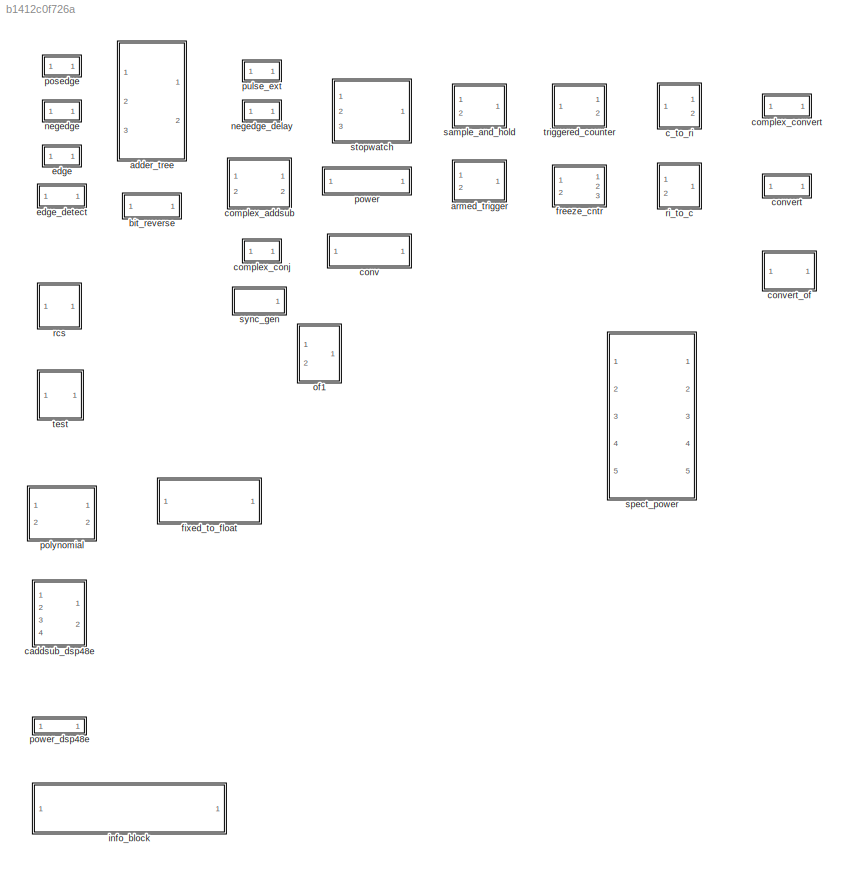
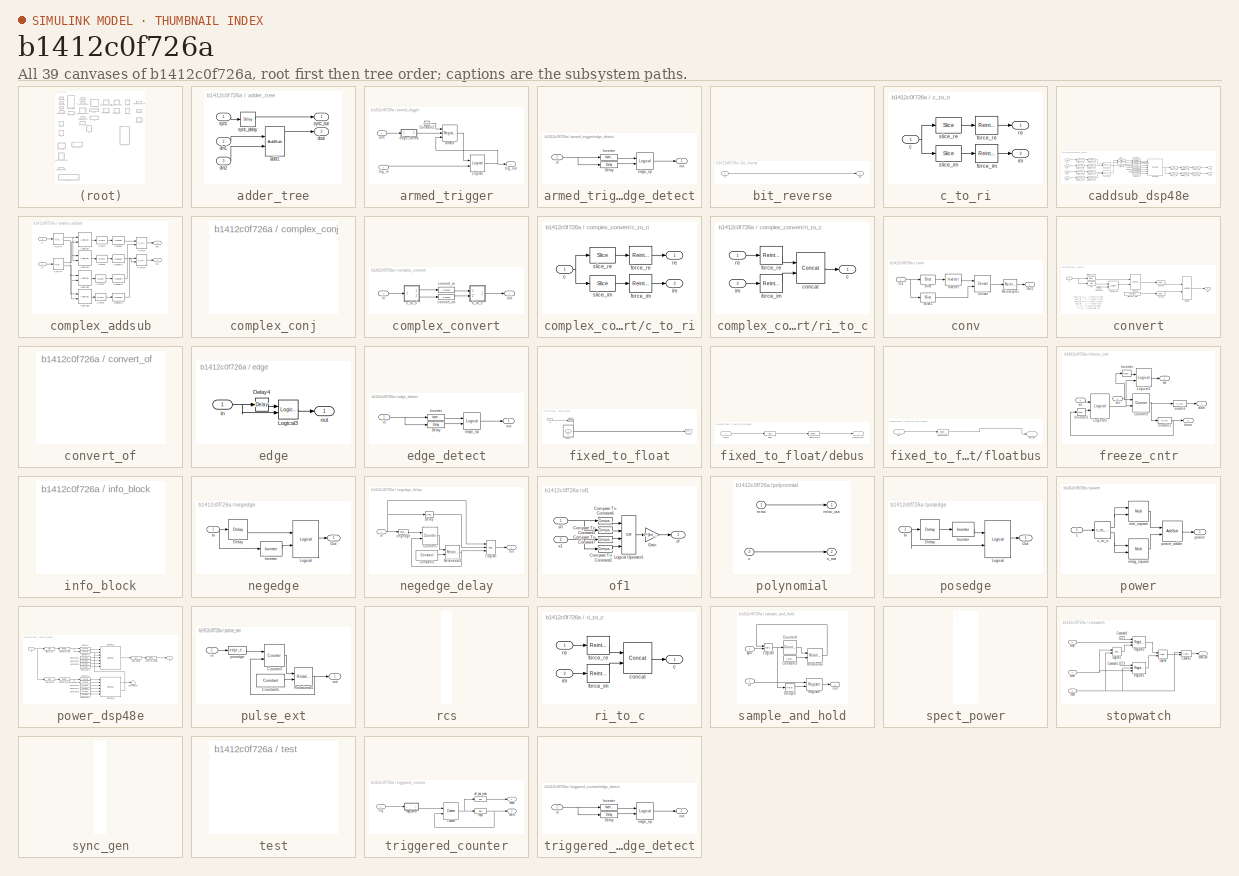
[diagram: thumbnail index - all 39 canvases of the model, root first then tree order]
MODEL slx_b1412c0f726a
KIND library
CONFIG AbsTol = auto
CONFIG EnableMultiTasking = off
CONFIG FixedStep = auto
CONFIG MaxStep = auto
CONFIG MinStep = auto
CONFIG RelTol = 1e-3
CONFIG SampleTimeConstraint = Unconstrained
CONFIG Solver = ode45
CONFIG SolverName = ode45
CONFIG StartTime = 0.0
CONFIG StopTime = 10.0
BLOCK [SubSystem] adder_tree
  AttributesFormatString = latency 1
  Ports = [3, 2]
  RequestExecContextInheritance = off
  UserDataPersistent = on
BLOCK [Reference] adder_tree/addr1  REF=xbsIndex_r4/AddSub
  Ports = [2, 1]
  SourceBlock = xbsIndex_r4/AddSub
  SourceType = Xilinx Adder/Subtracter Block
BLOCK [Inport] adder_tree/din1
  IconDisplay = Port number
  Port = 2
BLOCK [Inport] adder_tree/din2
  IconDisplay = Port number
  Port = 3
BLOCK [Outport] adder_tree/dout
  IconDisplay = Port number
  Port = 2
BLOCK [Inport] adder_tree/sync
  IconDisplay = Port number
BLOCK [Reference] adder_tree/sync_delay  REF=xbsIndex_r4/Delay
  Ports = [1, 1]
  SourceBlock = xbsIndex_r4/Delay
  SourceType = Xilinx Delay Block
BLOCK [Outport] adder_tree/sync_out
  IconDisplay = Port number
BLOCK [SubSystem] armed_trigger
  Ports = [2, 1]
  RequestExecContextInheritance = off
BLOCK [Reference] armed_trigger/Constant2  REF=xbsIndex_r4/Constant
  Ports = [0, 1]
  SourceBlock = xbsIndex_r4/Constant
  SourceType = Xilinx Constant Block Block
BLOCK [Reference] armed_trigger/Logical  REF=xbsIndex_r4/Logical
  Ports = [2, 1]
  SourceBlock = xbsIndex_r4/Logical
  SourceType = Xilinx Logical Block Block
BLOCK [Inport] armed_trigger/arm
  IconDisplay = Port number
BLOCK [Reference] armed_trigger/armed  REF=xbsIndex_r4/Register
  AttributesFormatString = init=%<init>
  Ports = [3, 1]
  SourceBlock = xbsIndex_r4/Register
  SourceType = Xilinx Register Block
BLOCK [SubSystem] armed_trigger/edge_detect
  AttributesFormatString = rising edges\nactive high
  Ports = [1, 1]
  RequestExecContextInheritance = off
  UserDataPersistent = on
BLOCK [Reference] armed_trigger/edge_detect/Delay  REF=xbsIndex_r4/Delay
  Ports = [1, 1]
  SourceBlock = xbsIndex_r4/Delay
  SourceType = Xilinx Delay Block
BLOCK [Reference] armed_trigger/edge_detect/Inverter  REF=xbsIndex_r4/Inverter
  Ports = [1, 1]
  SourceBlock = xbsIndex_r4/Inverter
  SourceType = Xilinx Inverter Block
BLOCK [Reference] armed_trigger/edge_detect/edge_op  REF=xbsIndex_r4/Logical
  Ports = [2, 1]
  SourceBlock = xbsIndex_r4/Logical
  SourceType = Xilinx Logical Block Block
BLOCK [Inport] armed_trigger/edge_detect/in
  IconDisplay = Port number
BLOCK [Outport] armed_trigger/edge_detect/out
  IconDisplay = Port number
BLOCK [Inport] armed_trigger/trig_in
  IconDisplay = Port number
  Port = 2
BLOCK [Outport] armed_trigger/trig_out
  IconDisplay = Port number
BLOCK [SubSystem] bit_reverse
  AttributesFormatString = 1 bits
  Ports = [1, 1]
  RequestExecContextInheritance = off
  UserDataPersistent = on
BLOCK [Inport] bit_reverse/in
  IconDisplay = Port number
BLOCK [Outport] bit_reverse/out
  IconDisplay = Port number
BLOCK [SubSystem] c_to_ri
  AttributesFormatString = 8_7 r/i
  Ports = [1, 2]
  RequestExecContextInheritance = off
  UserDataPersistent = on
BLOCK [Inport] c_to_ri/c
  IconDisplay = Port number
BLOCK [Reference] c_to_ri/force_im  REF=xbsIndex_r4/Reinterpret
  Ports = [1, 1]
  SourceBlock = xbsIndex_r4/Reinterpret
  SourceType = Xilinx Type Reinterpreter Block
BLOCK [Reference] c_to_ri/force_re  REF=xbsIndex_r4/Reinterpret
  Ports = [1, 1]
  SourceBlock = xbsIndex_r4/Reinterpret
  SourceType = Xilinx Type Reinterpreter Block
BLOCK [Outport] c_to_ri/im
  IconDisplay = Port number
  Port = 2
BLOCK [Outport] c_to_ri/re
  IconDisplay = Port number
BLOCK [Reference] c_to_ri/slice_im  REF=xbsIndex_r4/Slice
  Ports = [1, 1]
  SourceBlock = xbsIndex_r4/Slice
  SourceType = Xilinx Bit Slice Extractor Block
BLOCK [Reference] c_to_ri/slice_re  REF=xbsIndex_r4/Slice
  Ports = [1, 1]
  SourceBlock = xbsIndex_r4/Slice
  SourceType = Xilinx Bit Slice Extractor Block
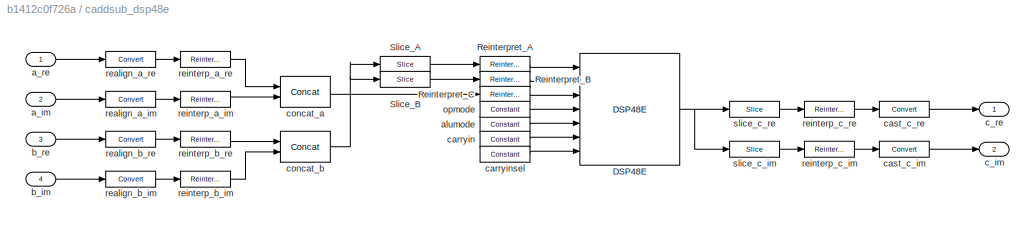
BLOCK [SubSystem] caddsub_dsp48e
  AttributesFormatString = 18_17 + 8_7 ==> 19_17\nMode=Addition\nLatency=2
  Ports = [4, 2]
  RequestExecContextInheritance = off
  UserDataPersistent = on
BLOCK [Reference] caddsub_dsp48e/DSP48E  REF=xbsIndex_r4/DSP48E
  Ports = [7, 1]
  SourceBlock = xbsIndex_r4/DSP48E
  SourceType = Xilinx DSP48E Block
BLOCK [Reference] caddsub_dsp48e/Reinterpret_A  REF=xbsIndex_r4/Reinterpret
  Ports = [1, 1]
  SourceBlock = xbsIndex_r4/Reinterpret
  SourceType = Xilinx Type Reinterpreter Block
BLOCK [Reference] caddsub_dsp48e/Reinterpret_B  REF=xbsIndex_r4/Reinterpret
  Ports = [1, 1]
  SourceBlock = xbsIndex_r4/Reinterpret
  SourceType = Xilinx Type Reinterpreter Block
BLOCK [Reference] caddsub_dsp48e/Reinterpret_C  REF=xbsIndex_r4/Reinterpret
  Ports = [1, 1]
  SourceBlock = xbsIndex_r4/Reinterpret
  SourceType = Xilinx Type Reinterpreter Block
BLOCK [Reference] caddsub_dsp48e/Slice_A  REF=xbsIndex_r4/Slice
  Ports = [1, 1]
  SourceBlock = xbsIndex_r4/Slice
  SourceType = Xilinx Bit Slice Extractor Block
BLOCK [Reference] caddsub_dsp48e/Slice_B  REF=xbsIndex_r4/Slice
  Ports = [1, 1]
  SourceBlock = xbsIndex_r4/Slice
  SourceType = Xilinx Bit Slice Extractor Block
BLOCK [Inport] caddsub_dsp48e/a_im
  IconDisplay = Port number
  Port = 2
BLOCK [Inport] caddsub_dsp48e/a_re
  IconDisplay = Port number
BLOCK [Reference] caddsub_dsp48e/alumode  REF=xbsIndex_r4/Constant
  Ports = [0, 1]
  SourceBlock = xbsIndex_r4/Constant
  SourceType = Xilinx Constant Block Block
BLOCK [Inport] caddsub_dsp48e/b_im
  IconDisplay = Port number
  Port = 4
BLOCK [Inport] caddsub_dsp48e/b_re
  IconDisplay = Port number
  Port = 3
BLOCK [Outport] caddsub_dsp48e/c_im
  IconDisplay = Port number
  Port = 2
BLOCK [Outport] caddsub_dsp48e/c_re
  IconDisplay = Port number
BLOCK [Reference] caddsub_dsp48e/carryin  REF=xbsIndex_r4/Constant
  Ports = [0, 1]
  SourceBlock = xbsIndex_r4/Constant
  SourceType = Xilinx Constant Block Block
BLOCK [Reference] caddsub_dsp48e/carryinsel  REF=xbsIndex_r4/Constant
  Ports = [0, 1]
  SourceBlock = xbsIndex_r4/Constant
  SourceType = Xilinx Constant Block Block
BLOCK [Reference] caddsub_dsp48e/cast_c_im  REF=xbsIndex_r4/Convert
  Ports = [1, 1]
  SourceBlock = xbsIndex_r4/Convert
  SourceType = Xilinx Type Converter Block
BLOCK [Reference] caddsub_dsp48e/cast_c_re  REF=xbsIndex_r4/Convert
  Ports = [1, 1]
  SourceBlock = xbsIndex_r4/Convert
  SourceType = Xilinx Type Converter Block
BLOCK [Reference] caddsub_dsp48e/concat_a  REF=xbsIndex_r4/Concat
  Ports = [2, 1]
  SourceBlock = xbsIndex_r4/Concat
  SourceType = Xilinx Bus Concatenator Block
BLOCK [Reference] caddsub_dsp48e/concat_b  REF=xbsIndex_r4/Concat
  Ports = [2, 1]
  SourceBlock = xbsIndex_r4/Concat
  SourceType = Xilinx Bus Concatenator Block
BLOCK [Reference] caddsub_dsp48e/opmode  REF=xbsIndex_r4/Constant
  Ports = [0, 1]
  SourceBlock = xbsIndex_r4/Constant
  SourceType = Xilinx Constant Block Block
BLOCK [Reference] caddsub_dsp48e/realign_a_im  REF=xbsIndex_r4/Convert
  Ports = [1, 1]
  SourceBlock = xbsIndex_r4/Convert
  SourceType = Xilinx Type Converter Block
BLOCK [Reference] caddsub_dsp48e/realign_a_re  REF=xbsIndex_r4/Convert
  Ports = [1, 1]
  SourceBlock = xbsIndex_r4/Convert
  SourceType = Xilinx Type Converter Block
BLOCK [Reference] caddsub_dsp48e/realign_b_im  REF=xbsIndex_r4/Convert
  Ports = [1, 1]
  SourceBlock = xbsIndex_r4/Convert
  SourceType = Xilinx Type Converter Block
BLOCK [Reference] caddsub_dsp48e/realign_b_re  REF=xbsIndex_r4/Convert
  Ports = [1, 1]
  SourceBlock = xbsIndex_r4/Convert
  SourceType = Xilinx Type Converter Block
BLOCK [Reference] caddsub_dsp48e/reinterp_a_im  REF=xbsIndex_r4/Reinterpret
  Ports = [1, 1]
  SourceBlock = xbsIndex_r4/Reinterpret
  SourceType = Xilinx Type Reinterpreter Block
BLOCK [Reference] caddsub_dsp48e/reinterp_a_re  REF=xbsIndex_r4/Reinterpret
  Ports = [1, 1]
  SourceBlock = xbsIndex_r4/Reinterpret
  SourceType = Xilinx Type Reinterpreter Block
BLOCK [Reference] caddsub_dsp48e/reinterp_b_im  REF=xbsIndex_r4/Reinterpret
  Ports = [1, 1]
  SourceBlock = xbsIndex_r4/Reinterpret
  SourceType = Xilinx Type Reinterpreter Block
BLOCK [Reference] caddsub_dsp48e/reinterp_b_re  REF=xbsIndex_r4/Reinterpret
  Ports = [1, 1]
  SourceBlock = xbsIndex_r4/Reinterpret
  SourceType = Xilinx Type Reinterpreter Block
BLOCK [Reference] caddsub_dsp48e/reinterp_c_im  REF=xbsIndex_r4/Reinterpret
  Ports = [1, 1]
  SourceBlock = xbsIndex_r4/Reinterpret
  SourceType = Xilinx Type Reinterpreter Block
BLOCK [Reference] caddsub_dsp48e/reinterp_c_re  REF=xbsIndex_r4/Reinterpret
  Ports = [1, 1]
  SourceBlock = xbsIndex_r4/Reinterpret
  SourceType = Xilinx Type Reinterpreter Block
BLOCK [Reference] caddsub_dsp48e/slice_c_im  REF=xbsIndex_r4/Slice
  Ports = [1, 1]
  SourceBlock = xbsIndex_r4/Slice
  SourceType = Xilinx Bit Slice Extractor Block
BLOCK [Reference] caddsub_dsp48e/slice_c_re  REF=xbsIndex_r4/Slice
  Ports = [1, 1]
  SourceBlock = xbsIndex_r4/Slice
  SourceType = Xilinx Bit Slice Extractor Block
BLOCK [SubSystem] complex_addsub
  Ports = [2, 2]
  RequestExecContextInheritance = off
BLOCK [Reference] complex_addsub/AddSub  REF=xbsIndex_r4/AddSub
  Ports = [2, 1]
  SourceBlock = xbsIndex_r4/AddSub
  SourceType = Xilinx Adder/Subtracter Block
BLOCK [Reference] complex_addsub/AddSub1  REF=xbsIndex_r4/AddSub
  Ports = [2, 1]
  SourceBlock = xbsIndex_r4/AddSub
  SourceType = Xilinx Adder/Subtracter Block
BLOCK [Reference] complex_addsub/AddSub2  REF=xbsIndex_r4/AddSub
  Ports = [2, 1]
  SourceBlock = xbsIndex_r4/AddSub
  SourceType = Xilinx Adder/Subtracter Block
BLOCK [Reference] complex_addsub/AddSub3  REF=xbsIndex_r4/AddSub
  Ports = [2, 1]
  SourceBlock = xbsIndex_r4/AddSub
  SourceType = Xilinx Adder/Subtracter Block
BLOCK [Reference] complex_addsub/Convert  REF=xbsIndex_r4/Convert
  Ports = [1, 1]
  SourceBlock = xbsIndex_r4/Convert
  SourceType = Xilinx Type Converter Block
BLOCK [Reference] complex_addsub/Convert1  REF=xbsIndex_r4/Convert
  Ports = [1, 1]
  SourceBlock = xbsIndex_r4/Convert
  SourceType = Xilinx Type Converter Block
BLOCK [Reference] complex_addsub/Convert2  REF=xbsIndex_r4/Convert
  Ports = [1, 1]
  SourceBlock = xbsIndex_r4/Convert
  SourceType = Xilinx Type Converter Block
BLOCK [Reference] complex_addsub/Convert3  REF=xbsIndex_r4/Convert
  Ports = [1, 1]
  SourceBlock = xbsIndex_r4/Convert
  SourceType = Xilinx Type Converter Block
BLOCK [Reference] complex_addsub/Scale  REF=xbsIndex_r4/Scale
  Ports = [1, 1]
  SourceBlock = xbsIndex_r4/Scale
  SourceType = Xilinx Input Scaler Block
BLOCK [Reference] complex_addsub/Scale1  REF=xbsIndex_r4/Scale
  Ports = [1, 1]
  SourceBlock = xbsIndex_r4/Scale
  SourceType = Xilinx Input Scaler Block
BLOCK [Reference] complex_addsub/Scale2  REF=xbsIndex_r4/Scale
  Ports = [1, 1]
  SourceBlock = xbsIndex_r4/Scale
  SourceType = Xilinx Input Scaler Block
BLOCK [Reference] complex_addsub/Scale3  REF=xbsIndex_r4/Scale
  Ports = [1, 1]
  SourceBlock = xbsIndex_r4/Scale
  SourceType = Xilinx Input Scaler Block
BLOCK [Inport] complex_addsub/a
  IconDisplay = Port number
BLOCK [Outport] complex_addsub/a+b
  IconDisplay = Port number
BLOCK [Outport] complex_addsub/a-b
  IconDisplay = Port number
  Port = 2
BLOCK [Inport] complex_addsub/b
  IconDisplay = Port number
  Port = 2
BLOCK [Reference] complex_addsub/c_to_ri  REF=$bdroot/c_to_ri
  AttributesFormatString = 18_17 r/i
  Ports = [1, 2]
  SourceBlock = $bdroot/c_to_ri
  SourceType = c_to_ri
  UserDataPersistent = on
BLOCK [Reference] complex_addsub/c_to_ri1  REF=$bdroot/c_to_ri
  AttributesFormatString = 18_17 r/i
  Ports = [1, 2]
  SourceBlock = $bdroot/c_to_ri
  SourceType = c_to_ri
  UserDataPersistent = on
BLOCK [Reference] complex_addsub/ri_to_c  REF=$bdroot/ri_to_c
  Ports = [2, 1]
  SourceBlock = $bdroot/ri_to_c
  SourceType = ri_to_c
  UserDataPersistent = on
BLOCK [Reference] complex_addsub/ri_to_c1  REF=$bdroot/ri_to_c
  Ports = [2, 1]
  SourceBlock = $bdroot/ri_to_c
  SourceType = ri_to_c
  UserDataPersistent = on
BLOCK [SubSystem] complex_conj
  Ports = []
  RequestExecContextInheritance = off
  UserDataPersistent = on
BLOCK [SubSystem] complex_convert
  AttributesFormatString = 8_7 ==> 8_7\ntruncate, wrap\nlatency = 3
  Ports = [1, 1]
  RequestExecContextInheritance = off
  UserDataPersistent = on
BLOCK [SubSystem] complex_convert/c_to_ri
  AncestorBlock = casper_library_misc/c_to_ri
  AttributesFormatString = 8_7 r/i
  Ports = [1, 2]
  RequestExecContextInheritance = off
  UserDataPersistent = on
BLOCK [Inport] complex_convert/c_to_ri/c
  IconDisplay = Port number
BLOCK [Reference] complex_convert/c_to_ri/force_im  REF=xbsIndex_r4/Reinterpret
  Ports = [1, 1]
  SourceBlock = xbsIndex_r4/Reinterpret
  SourceType = Xilinx Type Reinterpreter Block
BLOCK [Reference] complex_convert/c_to_ri/force_re  REF=xbsIndex_r4/Reinterpret
  Ports = [1, 1]
  SourceBlock = xbsIndex_r4/Reinterpret
  SourceType = Xilinx Type Reinterpreter Block
BLOCK [Outport] complex_convert/c_to_ri/im
  IconDisplay = Port number
  Port = 2
BLOCK [Outport] complex_convert/c_to_ri/re
  IconDisplay = Port number
BLOCK [Reference] complex_convert/c_to_ri/slice_im  REF=xbsIndex_r4/Slice
  Ports = [1, 1]
  SourceBlock = xbsIndex_r4/Slice
  SourceType = Xilinx Bit Slice Extractor Block
BLOCK [Reference] complex_convert/c_to_ri/slice_re  REF=xbsIndex_r4/Slice
  Ports = [1, 1]
  SourceBlock = xbsIndex_r4/Slice
  SourceType = Xilinx Bit Slice Extractor Block
BLOCK [Reference] complex_convert/convert_im  REF=xbsIndex_r4/Convert
  Ports = [1, 1]
  SourceBlock = xbsIndex_r4/Convert
  SourceType = Xilinx Type Converter Block
BLOCK [Reference] complex_convert/convert_re  REF=xbsIndex_r4/Convert
  Ports = [1, 1]
  SourceBlock = xbsIndex_r4/Convert
  SourceType = Xilinx Type Converter Block
BLOCK [Inport] complex_convert/in
  IconDisplay = Port number
BLOCK [Outport] complex_convert/out
  IconDisplay = Port number
BLOCK [SubSystem] complex_convert/ri_to_c
  AncestorBlock = casper_library_misc/ri_to_c
  Ports = [2, 1]
  RequestExecContextInheritance = off
  UserDataPersistent = on
BLOCK [Outport] complex_convert/ri_to_c/c
  IconDisplay = Port number
BLOCK [Reference] complex_convert/ri_to_c/concat  REF=xbsIndex_r4/Concat
  Ports = [2, 1]
  SourceBlock = xbsIndex_r4/Concat
  SourceType = Xilinx Bus Concatenator Block
BLOCK [Reference] complex_convert/ri_to_c/force_im  REF=xbsIndex_r4/Reinterpret
  Ports = [1, 1]
  SourceBlock = xbsIndex_r4/Reinterpret
  SourceType = Xilinx Type Reinterpreter Block
BLOCK [Reference] complex_convert/ri_to_c/force_re  REF=xbsIndex_r4/Reinterpret
  Ports = [1, 1]
  SourceBlock = xbsIndex_r4/Reinterpret
  SourceType = Xilinx Type Reinterpreter Block
BLOCK [Inport] complex_convert/ri_to_c/im
  IconDisplay = Port number
  Port = 2
BLOCK [Inport] complex_convert/ri_to_c/re
  IconDisplay = Port number
BLOCK [SubSystem] conv
  Ports = [1, 1]
  RequestExecContextInheritance = off
BLOCK [Reference] conv/Concat  REF=xbsIndex_r4/Concat
  Ports = [2, 1]
  SourceBlock = xbsIndex_r4/Concat
  SourceType = Xilinx Bus Concatenator Block
BLOCK [Inport] conv/In1
  IconDisplay = Port number
BLOCK [Reference] conv/Inverter  REF=xbsIndex_r4/Inverter
  Ports = [1, 1]
  SourceBlock = xbsIndex_r4/Inverter
  SourceType = Xilinx Inverter Block
BLOCK [Outport] conv/Out1
  IconDisplay = Port number
BLOCK [Reference] conv/Reinterpret  REF=xbsIndex_r4/Reinterpret
  Ports = [1, 1]
  SourceBlock = xbsIndex_r4/Reinterpret
  SourceType = Xilinx Type Reinterpreter Block
BLOCK [Reference] conv/Slice  REF=xbsIndex_r4/Slice
  Ports = [1, 1]
  SourceBlock = xbsIndex_r4/Slice
  SourceType = Xilinx Bit Slice Extractor Block
BLOCK [Reference] conv/Slice1  REF=xbsIndex_r4/Slice
  Ports = [1, 1]
  SourceBlock = xbsIndex_r4/Slice
  SourceType = Xilinx Bit Slice Extractor Block
BLOCK [SubSystem] convert
  AttributesFormatString = N_7 ==> 4_3\ntruncate, wrap\nlatency = 4
  Ports = [1, 1]
  RequestExecContextInheritance = off
  UserDataPersistent = on
BLOCK [Reference] convert/Concat  REF=xbsIndex_r4/Concat
  Ports = [2, 1]
  SourceBlock = xbsIndex_r4/Concat
  SourceType = Xilinx Bus Concatenator Block
BLOCK [Reference] convert/Constant  REF=xbsIndex_r4/Constant
  Ports = [0, 1]
  SourceBlock = xbsIndex_r4/Constant
  SourceType = Xilinx Constant Block Block
BLOCK [Reference] convert/Reinterpret  REF=xbsIndex_r4/Reinterpret
  Ports = [1, 1]
  SourceBlock = xbsIndex_r4/Reinterpret
  SourceType = Xilinx Type Reinterpreter Block
BLOCK [Reference] convert/adder  REF=xbsIndex_r4/AddSub
  Ports = [2, 1]
  SourceBlock = xbsIndex_r4/AddSub
  SourceType = Xilinx Adder/Subtracter Block
BLOCK [Reference] convert/almost_half  REF=xbsIndex_r4/Constant
  Ports = [0, 1]
  SourceBlock = xbsIndex_r4/Constant
  SourceType = Xilinx Constant Block Block
BLOCK [Reference] convert/bit  REF=xbsIndex_r4/Slice
  Ports = [1, 1]
  SourceBlock = xbsIndex_r4/Slice
  SourceType = Xilinx Bit Slice Extractor Block
BLOCK [Reference] convert/force1  REF=xbsIndex_r4/Reinterpret
  Ports = [1, 1]
  SourceBlock = xbsIndex_r4/Reinterpret
  SourceType = Xilinx Type Reinterpreter Block
BLOCK [Reference] convert/force2  REF=xbsIndex_r4/Reinterpret
  Ports = [1, 1]
  SourceBlock = xbsIndex_r4/Reinterpret
  SourceType = Xilinx Type Reinterpreter Block
BLOCK [Inport] convert/in
  IconDisplay = Port number
BLOCK [Outport] convert/out
  IconDisplay = Port number
BLOCK [Reference] convert/tweak_op  REF=xbsIndex_r4/Logical
  Ports = [2, 1]
  SourceBlock = xbsIndex_r4/Logical
  SourceType = Xilinx Logical Block Block
BLOCK [SubSystem] convert_of
  Ports = []
  RequestExecContextInheritance = off
  UserDataPersistent = on
BLOCK [SubSystem] edge
  CopyFcn = deprecation_warning('the edge block is to be removed from the casper library, please use the edge_detect block instead','edge')
  Ports = [1, 1]
  RequestExecContextInheritance = off
BLOCK [Reference] edge/Delay4  REF=xbsIndex_r4/Delay
  Ports = [1, 1]
  SourceBlock = xbsIndex_r4/Delay
  SourceType = Xilinx Delay Block
BLOCK [Reference] edge/Logical3  REF=xbsIndex_r4/Logical
  Ports = [2, 1]
  SourceBlock = xbsIndex_r4/Logical
  SourceType = Xilinx Logical Block Block
BLOCK [Inport] edge/in
  IconDisplay = Port number
BLOCK [Outport] edge/out
  IconDisplay = Port number
BLOCK [SubSystem] edge_detect
  AttributesFormatString = rising edges\nactive high
  Ports = [1, 1]
  RequestExecContextInheritance = off
  UserDataPersistent = on
BLOCK [Reference] edge_detect/Delay  REF=xbsIndex_r4/Delay
  Ports = [1, 1]
  SourceBlock = xbsIndex_r4/Delay
  SourceType = Xilinx Delay Block
BLOCK [Reference] edge_detect/Inverter  REF=xbsIndex_r4/Inverter
  Ports = [1, 1]
  SourceBlock = xbsIndex_r4/Inverter
  SourceType = Xilinx Inverter Block
BLOCK [Reference] edge_detect/edge_op  REF=xbsIndex_r4/Logical
  Ports = [2, 1]
  SourceBlock = xbsIndex_r4/Logical
  SourceType = Xilinx Logical Block Block
BLOCK [Inport] edge_detect/in
  IconDisplay = Port number
BLOCK [Outport] edge_detect/out
  IconDisplay = Port number
BLOCK [SubSystem] fixed_to_float
  Ports = [1, 1]
  RequestExecContextInheritance = off
  UserDataPersistent = on
BLOCK [Reference] fixed_to_float/conv1  REF=xbsIndex_r4/Convert
  Ports = [1, 1]
  SourceBlock = xbsIndex_r4/Convert
  SourceType = Xilinx Type Converter Block
BLOCK [SubSystem] fixed_to_float/debus
  AncestorBlock = casper_library_flow_control/bus_expand
  AttributesFormatString = 1 outputs: f18.17,
  Ports = [1, 1]
  RequestExecContextInheritance = off
  UserDataPersistent = on
BLOCK [Inport] fixed_to_float/debus/bus_in
  IconDisplay = Port number
BLOCK [Outport] fixed_to_float/debus/msb_lsb_out1
  IconDisplay = Port number
BLOCK [Reference] fixed_to_float/debus/reinterpret1  REF=xbsIndex_r4/Reinterpret
  Ports = [1, 1]
  SourceBlock = xbsIndex_r4/Reinterpret
  SourceType = Xilinx Type Reinterpreter Block
BLOCK [Reference] fixed_to_float/debus/slice1  REF=xbsIndex_r4/Slice
  Ports = [1, 1]
  SourceBlock = xbsIndex_r4/Slice
  SourceType = Xilinx Bit Slice Extractor Block
BLOCK [SubSystem] fixed_to_float/floatbus
  AncestorBlock = casper_library_flow_control/bus_create
  Ports = [1, 1]
  RequestExecContextInheritance = off
  UserDataPersistent = on
BLOCK [Outport] fixed_to_float/floatbus/bus_out
  IconDisplay = Port number
BLOCK [Inport] fixed_to_float/floatbus/in1
  IconDisplay = Port number
BLOCK [Reference] fixed_to_float/floatbus/reinterpret1  REF=xbsIndex_r4/Reinterpret
  Ports = [1, 1]
  SourceBlock = xbsIndex_r4/Reinterpret
  SourceType = Xilinx Type Reinterpreter Block
BLOCK [Inport] fixed_to_float/in
  IconDisplay = Port number
BLOCK [Outport] fixed_to_float/out
  IconDisplay = Port number
BLOCK [SubSystem] freeze_cntr
  Ports = [2, 3]
  RequestExecContextInheritance = off
BLOCK [Reference] freeze_cntr/Counter3  REF=xbsIndex_r4/Counter
  Ports = [2, 1]
  SourceBlock = xbsIndex_r4/Counter
  SourceType = Xilinx Counter Block
BLOCK [Reference] freeze_cntr/Inverter  REF=xbsIndex_r4/Inverter
  Ports = [1, 1]
  SourceBlock = xbsIndex_r4/Inverter
  SourceType = Xilinx Inverter Block
BLOCK [Reference] freeze_cntr/Inverter1  REF=xbsIndex_r4/Inverter
  Ports = [1, 1]
  SourceBlock = xbsIndex_r4/Inverter
  SourceType = Xilinx Inverter Block
BLOCK [Reference] freeze_cntr/Logical1  REF=xbsIndex_r4/Logical
  Ports = [2, 1]
  SourceBlock = xbsIndex_r4/Logical
  SourceType = Xilinx Logical Block Block
BLOCK [Reference] freeze_cntr/Logical5  REF=xbsIndex_r4/Logical
  Ports = [2, 1]
  SourceBlock = xbsIndex_r4/Logical
  SourceType = Xilinx Logical Block Block
BLOCK [Outport] freeze_cntr/addr
  IconDisplay = Port number
BLOCK [Outport] freeze_cntr/done
  IconDisplay = Port number
  Port = 3
BLOCK [Inport] freeze_cntr/en
  IconDisplay = Port number
BLOCK [Reference] freeze_cntr/enable  REF=xbsIndex_r4/Slice
  Ports = [1, 1]
  SourceBlock = xbsIndex_r4/Slice
  SourceType = Xilinx Bit Slice Extractor Block
BLOCK [Reference] freeze_cntr/enable1  REF=xbsIndex_r4/Slice
  Ports = [1, 1]
  SourceBlock = xbsIndex_r4/Slice
  SourceType = Xilinx Bit Slice Extractor Block
BLOCK [Inport] freeze_cntr/rst
  IconDisplay = Port number
  Port = 2
BLOCK [Outport] freeze_cntr/we
  IconDisplay = Port number
  Port = 2
BLOCK [SubSystem] info_block
  MoveFcn = pos = get_param(gcb, 'Position'); height = pos(4)-pos(2); txt = get_param(gcb, 'info'); set_param(gcb,'MaskValueString',txt);
  Ports = []
  RequestExecContextInheritance = off
  Tag = casper:info
BLOCK [SubSystem] negedge
  CopyFcn = deprecation_warning('the negedge block is to be removed from the casper library, please use the edge_detect block instead','negedge')
  Ports = [1, 1]
  RequestExecContextInheritance = off
  Tag = Rising Edge Detector
BLOCK [Reference] negedge/Delay  REF=xbsIndex_r4/Delay
  Ports = [1, 1]
  SourceBlock = xbsIndex_r4/Delay
  SourceType = Xilinx Delay Block
BLOCK [Inport] negedge/In
  IconDisplay = Port number
BLOCK [Reference] negedge/Inverter  REF=xbsIndex_r4/Inverter
  Ports = [1, 1]
  SourceBlock = xbsIndex_r4/Inverter
  SourceType = Xilinx Inverter Block
BLOCK [Reference] negedge/Logical  REF=xbsIndex_r4/Logical
  Ports = [2, 1]
  SourceBlock = xbsIndex_r4/Logical
  SourceType = Xilinx Logical Block Block
BLOCK [Outport] negedge/Out
  IconDisplay = Port number
BLOCK [SubSystem] negedge_delay
  Ports = [1, 1]
  RequestExecContextInheritance = off
BLOCK [Reference] negedge_delay/Constant5  REF=xbsIndex_r4/Constant
  Ports = [0, 1]
  SourceBlock = xbsIndex_r4/Constant
  SourceType = Xilinx Constant Block Block
BLOCK [Reference] negedge_delay/Counter3  REF=xbsIndex_r4/Counter
  Ports = [2, 1]
  SourceBlock = xbsIndex_r4/Counter
  SourceType = Xilinx Counter Block
BLOCK [Reference] negedge_delay/Delay  REF=xbsIndex_r4/Delay
  Ports = [1, 1]
  SourceBlock = xbsIndex_r4/Delay
  SourceType = Xilinx Delay Block
BLOCK [Reference] negedge_delay/Logical  REF=xbsIndex_r4/Logical
  Ports = [3, 1]
  SourceBlock = xbsIndex_r4/Logical
  SourceType = Xilinx Logical Block Block
BLOCK [Reference] negedge_delay/Relational5  REF=xbsIndex_r4/Relational
  Ports = [2, 1]
  SourceBlock = xbsIndex_r4/Relational
  SourceType = Xilinx Arithmetic Relational Operator Block
BLOCK [Inport] negedge_delay/in
  IconDisplay = Port number
BLOCK [Reference] negedge_delay/negedge  REF=$bdroot/edge_detect
  AttributesFormatString = falling edges\nactive high
  Ports = [1, 1]
  SourceBlock = $bdroot/edge_detect
  SourceType = edge_detect
  UserDataPersistent = on
BLOCK [Outport] negedge_delay/out
  IconDisplay = Port number
BLOCK [SubSystem] of1
  Ports = [2, 1]
  RequestExecContextInheritance = off
BLOCK [Reference] of1/Compare To Constant1  REF=simulink/Logic and Bit
Operations/Compare
To Constant
  Ports = [1, 1]
  SourceBlock = simulink/Logic and Bit\nOperations/Compare\nTo Constant
  SourceProductBaseCode = SL
  SourceProductName = Simulink
  SourceType = Compare To Constant
BLOCK [Reference] of1/Compare To Constant2  REF=simulink/Logic and Bit
Operations/Compare
To Constant
  Ports = [1, 1]
  SourceBlock = simulink/Logic and Bit\nOperations/Compare\nTo Constant
  SourceProductBaseCode = SL
  SourceProductName = Simulink
  SourceType = Compare To Constant
BLOCK [Reference] of1/Compare To Constant6  REF=simulink/Logic and Bit
Operations/Compare
To Constant
  Ports = [1, 1]
  SourceBlock = simulink/Logic and Bit\nOperations/Compare\nTo Constant
  SourceProductBaseCode = SL
  SourceProductName = Simulink
  SourceType = Compare To Constant
BLOCK [Reference] of1/Compare To Constant7  REF=simulink/Logic and Bit
Operations/Compare
To Constant
  Ports = [1, 1]
  SourceBlock = simulink/Logic and Bit\nOperations/Compare\nTo Constant
  SourceProductBaseCode = SL
  SourceProductName = Simulink
  SourceType = Compare To Constant
BLOCK [Gain] of1/Gain
  Gain = 2^(bit_num)
  OutDataTypeStr = Inherit: Inherit via internal rule
  ParamDataTypeStr = Inherit: Inherit via internal rule
  SaturateOnIntegerOverflow = off
BLOCK [Logic] of1/Logical Operator1
  AllPortsSameDT = off
  Inputs = 4
  Operator = OR
  OutDataTypeStr = boolean
  Ports = [4, 1]
BLOCK [Outport] of1/of
  IconDisplay = Port number
BLOCK [Inport] of1/s0
  IconDisplay = Port number
BLOCK [Inport] of1/s1
  IconDisplay = Port number
  Port = 2
BLOCK [SubSystem] polynomial
  Ports = [2, 2]
  RequestExecContextInheritance = off
  UserDataPersistent = on
BLOCK [Inport] polynomial/misc
  IconDisplay = Port number
BLOCK [Outport] polynomial/misc_out
  IconDisplay = Port number
BLOCK [Inport] polynomial/x
  IconDisplay = Port number
  Port = 2
BLOCK [Outport] polynomial/x_out
  IconDisplay = Port number
  Port = 2
BLOCK [SubSystem] posedge
  CopyFcn = deprecation_warning('the posedge block is to be removed from the casper library, please use the edge_detect block instead','posedge')
  Ports = [1, 1]
  RequestExecContextInheritance = off
  Tag = Rising Edge Detector
BLOCK [Reference] posedge/Delay  REF=xbsIndex_r4/Delay
  Ports = [1, 1]
  SourceBlock = xbsIndex_r4/Delay
  SourceType = Xilinx Delay Block
BLOCK [Inport] posedge/In
  IconDisplay = Port number
BLOCK [Reference] posedge/Inverter  REF=xbsIndex_r4/Inverter
  Ports = [1, 1]
  SourceBlock = xbsIndex_r4/Inverter
  SourceType = Xilinx Inverter Block
BLOCK [Reference] posedge/Logical  REF=xbsIndex_r4/Logical
  Ports = [2, 1]
  SourceBlock = xbsIndex_r4/Logical
  SourceType = Xilinx Logical Block Block
BLOCK [Outport] posedge/Out
  IconDisplay = Port number
BLOCK [SubSystem] power
  Ports = [1, 1]
  RequestExecContextInheritance = off
BLOCK [Inport] power/c
  IconDisplay = Port number
BLOCK [Reference] power/c_to_ri  REF=$bdroot/c_to_ri
  AttributesFormatString = 18_17 r/i
  Ports = [1, 2]
  SourceBlock = $bdroot/c_to_ri
  SourceType = c_to_ri
  UserDataPersistent = on
BLOCK [Reference] power/imag_square  REF=xbsIndex_r4/Mult
  Ports = [2, 1]
  SourceBlock = xbsIndex_r4/Mult
  SourceType = Xilinx Multiplier Block
BLOCK [Outport] power/power
  IconDisplay = Port number
BLOCK [Reference] power/power_adder  REF=xbsIndex_r4/AddSub
  Ports = [2, 1]
  SourceBlock = xbsIndex_r4/AddSub
  SourceType = Xilinx Adder/Subtracter Block
BLOCK [Reference] power/real_square  REF=xbsIndex_r4/Mult
  Ports = [2, 1]
  SourceBlock = xbsIndex_r4/Mult
  SourceType = Xilinx Multiplier Block
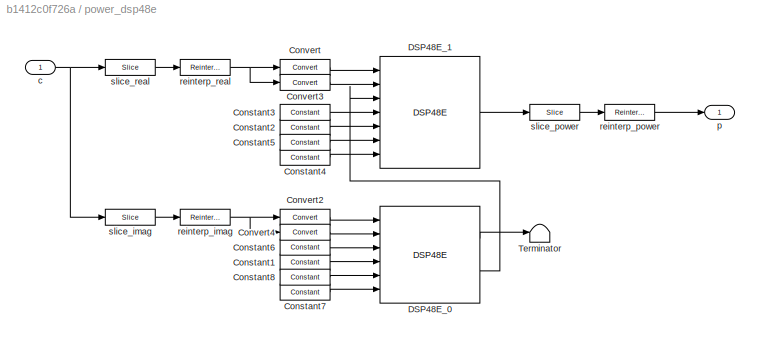
BLOCK [SubSystem] power_dsp48e
  Ports = [1, 1]
  RequestExecContextInheritance = off
BLOCK [Reference] power_dsp48e/Constant1  REF=xbsIndex_r4/Constant
  Ports = [0, 1]
  SourceBlock = xbsIndex_r4/Constant
  SourceType = Xilinx Constant Block Block
BLOCK [Reference] power_dsp48e/Constant2  REF=xbsIndex_r4/Constant
  Ports = [0, 1]
  SourceBlock = xbsIndex_r4/Constant
  SourceType = Xilinx Constant Block Block
BLOCK [Reference] power_dsp48e/Constant3  REF=xbsIndex_r4/Constant
  Ports = [0, 1]
  SourceBlock = xbsIndex_r4/Constant
  SourceType = Xilinx Constant Block Block
BLOCK [Reference] power_dsp48e/Constant4  REF=xbsIndex_r4/Constant
  Ports = [0, 1]
  SourceBlock = xbsIndex_r4/Constant
  SourceType = Xilinx Constant Block Block
BLOCK [Reference] power_dsp48e/Constant5  REF=xbsIndex_r4/Constant
  Ports = [0, 1]
  SourceBlock = xbsIndex_r4/Constant
  SourceType = Xilinx Constant Block Block
BLOCK [Reference] power_dsp48e/Constant6  REF=xbsIndex_r4/Constant
  Ports = [0, 1]
  SourceBlock = xbsIndex_r4/Constant
  SourceType = Xilinx Constant Block Block
BLOCK [Reference] power_dsp48e/Constant7  REF=xbsIndex_r4/Constant
  Ports = [0, 1]
  SourceBlock = xbsIndex_r4/Constant
  SourceType = Xilinx Constant Block Block
BLOCK [Reference] power_dsp48e/Constant8  REF=xbsIndex_r4/Constant
  Ports = [0, 1]
  SourceBlock = xbsIndex_r4/Constant
  SourceType = Xilinx Constant Block Block
BLOCK [Reference] power_dsp48e/Convert  REF=xbsIndex_r4/Convert
  Ports = [1, 1]
  SourceBlock = xbsIndex_r4/Convert
  SourceType = Xilinx Type Converter Block
BLOCK [Reference] power_dsp48e/Convert2  REF=xbsIndex_r4/Convert
  Ports = [1, 1]
  SourceBlock = xbsIndex_r4/Convert
  SourceType = Xilinx Type Converter Block
BLOCK [Reference] power_dsp48e/Convert3  REF=xbsIndex_r4/Convert
  Ports = [1, 1]
  SourceBlock = xbsIndex_r4/Convert
  SourceType = Xilinx Type Converter Block
BLOCK [Reference] power_dsp48e/Convert4  REF=xbsIndex_r4/Convert
  Ports = [1, 1]
  SourceBlock = xbsIndex_r4/Convert
  SourceType = Xilinx Type Converter Block
BLOCK [Reference] power_dsp48e/DSP48E_0  REF=xbsIndex_r4/DSP48E
  Ports = [6, 2]
  SourceBlock = xbsIndex_r4/DSP48E
  SourceType = Xilinx DSP48E Block
BLOCK [Reference] power_dsp48e/DSP48E_1  REF=xbsIndex_r4/DSP48E
  Ports = [7, 1]
  SourceBlock = xbsIndex_r4/DSP48E
  SourceType = Xilinx DSP48E Block
BLOCK [Terminator] power_dsp48e/Terminator
BLOCK [Inport] power_dsp48e/c
  IconDisplay = Port number
BLOCK [Outport] power_dsp48e/p
  IconDisplay = Port number
BLOCK [Reference] power_dsp48e/reinterp_imag  REF=xbsIndex_r4/Reinterpret
  Ports = [1, 1]
  SourceBlock = xbsIndex_r4/Reinterpret
  SourceType = Xilinx Type Reinterpreter Block
BLOCK [Reference] power_dsp48e/reinterp_power  REF=xbsIndex_r4/Reinterpret
  Ports = [1, 1]
  SourceBlock = xbsIndex_r4/Reinterpret
  SourceType = Xilinx Type Reinterpreter Block
BLOCK [Reference] power_dsp48e/reinterp_real  REF=xbsIndex_r4/Reinterpret
  Ports = [1, 1]
  SourceBlock = xbsIndex_r4/Reinterpret
  SourceType = Xilinx Type Reinterpreter Block
BLOCK [Reference] power_dsp48e/slice_imag  REF=xbsIndex_r4/Slice
  Ports = [1, 1]
  SourceBlock = xbsIndex_r4/Slice
  SourceType = Xilinx Bit Slice Extractor Block
BLOCK [Reference] power_dsp48e/slice_power  REF=xbsIndex_r4/Slice
  Ports = [1, 1]
  SourceBlock = xbsIndex_r4/Slice
  SourceType = Xilinx Bit Slice Extractor Block
BLOCK [Reference] power_dsp48e/slice_real  REF=xbsIndex_r4/Slice
  Ports = [1, 1]
  SourceBlock = xbsIndex_r4/Slice
  SourceType = Xilinx Bit Slice Extractor Block
BLOCK [SubSystem] pulse_ext
  Ports = [1, 1]
  RequestExecContextInheritance = off
BLOCK [Reference] pulse_ext/Constant5  REF=xbsIndex_r4/Constant
  Ports = [0, 1]
  SourceBlock = xbsIndex_r4/Constant
  SourceType = Xilinx Constant Block Block
BLOCK [Reference] pulse_ext/Counter3  REF=xbsIndex_r4/Counter
  Ports = [2, 1]
  SourceBlock = xbsIndex_r4/Counter
  SourceType = Xilinx Counter Block
BLOCK [Reference] pulse_ext/Relational5  REF=xbsIndex_r4/Relational
  Ports = [2, 1]
  SourceBlock = xbsIndex_r4/Relational
  SourceType = Xilinx Arithmetic Relational Operator Block
BLOCK [Inport] pulse_ext/in
  IconDisplay = Port number
BLOCK [Outport] pulse_ext/out
  IconDisplay = Port number
BLOCK [Reference] pulse_ext/posedge  REF=$bdroot/edge_detect
  AttributesFormatString = rising edges\nactive high
  Ports = [1, 1]
  SourceBlock = $bdroot/edge_detect
  SourceType = edge_detect
  UserDataPersistent = on
BLOCK [SubSystem] rcs
  Ports = []
  RequestExecContextInheritance = off
BLOCK [Reference] rcs/Concat  REF=xbsIndex_r4/Concat
  Ports = [2, 1]
  SourceBlock = xbsIndex_r4/Concat
  SourceType = Xilinx Bus Concatenator Block
BLOCK [Reference] rcs/Concat1  REF=xbsIndex_r4/Concat
  Ports = [2, 1]
  SourceBlock = xbsIndex_r4/Concat
  SourceType = Xilinx Bus Concatenator Block
BLOCK [Reference] rcs/Mux  REF=xbsIndex_r4/Mux
  Ports = [3, 1]
  SourceBlock = xbsIndex_r4/Mux
  SourceType = Xilinx Bus Multiplexer Block
BLOCK [Reference] rcs/Mux1  REF=xbsIndex_r4/Mux
  Ports = [3, 1]
  SourceBlock = xbsIndex_r4/Mux
  SourceType = Xilinx Bus Multiplexer Block
BLOCK [Reference] rcs/app  REF=xps_library/Memory/software_register  (lib defined in mdl_00b5cec29cd0, mdl_02ab6ecaa3d1, +5 more)
  AttributesFormatString = 1output:uf32.0 = 32 bits
  Ports = [1, 1]
  SourceBlock = xps_library/Memory/software_register
  SourceProductName = CASPER XPS Blockset
  SourceType = swreg
  Tag = xps:sw_reg
BLOCK [Reference] rcs/app_dirty  REF=xbsIndex_r4/Constant
  Ports = [0, 1]
  SourceBlock = xbsIndex_r4/Constant
  SourceType = Xilinx Constant Block Block
BLOCK [Reference] rcs/app_info  REF=xbsIndex_r4/Concat
  Ports = [4, 1]
  SourceBlock = xbsIndex_r4/Concat
  SourceType = Xilinx Bus Concatenator Block
BLOCK [Reference] rcs/app_info1  REF=xbsIndex_r4/Concat
  Ports = [4, 1]
  SourceBlock = xbsIndex_r4/Concat
  SourceType = Xilinx Bus Concatenator Block
BLOCK [Reference] rcs/app_rcs_type  REF=xbsIndex_r4/Constant
  Ports = [0, 1]
  SourceBlock = xbsIndex_r4/Constant
  SourceType = Xilinx Constant Block Block
BLOCK [Reference] rcs/app_reserved  REF=xbsIndex_r4/Constant
  Ports = [0, 1]
  SourceBlock = xbsIndex_r4/Constant
  SourceType = Xilinx Constant Block Block
BLOCK [Reference] rcs/app_revision  REF=xbsIndex_r4/Constant
  Ports = [0, 1]
  SourceBlock = xbsIndex_r4/Constant
  SourceType = Xilinx Constant Block Block
BLOCK [Reference] rcs/app_timestamp  REF=xbsIndex_r4/Constant
  Ports = [0, 1]
  SourceBlock = xbsIndex_r4/Constant
  SourceType = Xilinx Constant Block Block
BLOCK [Reference] rcs/app_type  REF=xbsIndex_r4/Constant
  Ports = [0, 1]
  SourceBlock = xbsIndex_r4/Constant
  SourceType = Xilinx Constant Block Block
BLOCK [Reference] rcs/lib  REF=xps_library/Memory/software_register  (lib defined in mdl_00b5cec29cd0, mdl_02ab6ecaa3d1, +5 more)
  AttributesFormatString = 1output:uf32.0 = 32 bits
  Ports = [1, 1]
  SourceBlock = xps_library/Memory/software_register
  SourceProductName = CASPER XPS Blockset
  SourceType = swreg
  Tag = xps:sw_reg
BLOCK [Reference] rcs/lib_dirty  REF=xbsIndex_r4/Constant
  Ports = [0, 1]
  SourceBlock = xbsIndex_r4/Constant
  SourceType = Xilinx Constant Block Block
BLOCK [Reference] rcs/lib_rcs_type  REF=xbsIndex_r4/Constant
  Ports = [0, 1]
  SourceBlock = xbsIndex_r4/Constant
  SourceType = Xilinx Constant Block Block
BLOCK [Reference] rcs/lib_reserved  REF=xbsIndex_r4/Constant
  Ports = [0, 1]
  SourceBlock = xbsIndex_r4/Constant
  SourceType = Xilinx Constant Block Block
BLOCK [Reference] rcs/lib_revision  REF=xbsIndex_r4/Constant
  Ports = [0, 1]
  SourceBlock = xbsIndex_r4/Constant
  SourceType = Xilinx Constant Block Block
BLOCK [Reference] rcs/lib_timestamp  REF=xbsIndex_r4/Constant
  Ports = [0, 1]
  SourceBlock = xbsIndex_r4/Constant
  SourceType = Xilinx Constant Block Block
BLOCK [Reference] rcs/lib_type  REF=xbsIndex_r4/Constant
  Ports = [0, 1]
  SourceBlock = xbsIndex_r4/Constant
  SourceType = Xilinx Constant Block Block
BLOCK [Reference] rcs/user  REF=xps_library/Memory/software_register  (lib defined in mdl_00b5cec29cd0, mdl_02ab6ecaa3d1, +5 more)
  AttributesFormatString = 1output:uf32.0 = 32 bits
  Ports = [1, 1]
  SourceBlock = xps_library/Memory/software_register
  SourceProductName = CASPER XPS Blockset
  SourceType = swreg
  Tag = xps:sw_reg
BLOCK [Reference] rcs/user_val  REF=xbsIndex_r4/Constant
  Ports = [0, 1]
  SourceBlock = xbsIndex_r4/Constant
  SourceType = Xilinx Constant Block Block
BLOCK [SubSystem] ri_to_c
  Ports = [2, 1]
  RequestExecContextInheritance = off
  UserDataPersistent = on
BLOCK [Outport] ri_to_c/c
  IconDisplay = Port number
BLOCK [Reference] ri_to_c/concat  REF=xbsIndex_r4/Concat
  Ports = [2, 1]
  SourceBlock = xbsIndex_r4/Concat
  SourceType = Xilinx Bus Concatenator Block
BLOCK [Reference] ri_to_c/force_im  REF=xbsIndex_r4/Reinterpret
  Ports = [1, 1]
  SourceBlock = xbsIndex_r4/Reinterpret
  SourceType = Xilinx Type Reinterpreter Block
BLOCK [Reference] ri_to_c/force_re  REF=xbsIndex_r4/Reinterpret
  Ports = [1, 1]
  SourceBlock = xbsIndex_r4/Reinterpret
  SourceType = Xilinx Type Reinterpreter Block
BLOCK [Inport] ri_to_c/im
  IconDisplay = Port number
  Port = 2
BLOCK [Inport] ri_to_c/re
  IconDisplay = Port number
BLOCK [SubSystem] sample_and_hold
  Ports = [2, 1]
  RequestExecContextInheritance = off
BLOCK [Reference] sample_and_hold/Constant3  REF=xbsIndex_r4/Constant
  Ports = [0, 1]
  SourceBlock = xbsIndex_r4/Constant
  SourceType = Xilinx Constant Block Block
BLOCK [Reference] sample_and_hold/Counter4  REF=xbsIndex_r4/Counter
  Ports = [1, 1]
  SourceBlock = xbsIndex_r4/Counter
  SourceType = Xilinx Counter Block
BLOCK [Reference] sample_and_hold/Delay10  REF=xbsIndex_r4/Delay
  Ports = [1, 1]
  SourceBlock = xbsIndex_r4/Delay
  SourceType = Xilinx Delay Block
BLOCK [Reference] sample_and_hold/Logical  REF=xbsIndex_r4/Logical
  Ports = [2, 1]
  SourceBlock = xbsIndex_r4/Logical
  SourceType = Xilinx Logical Block Block
BLOCK [Reference] sample_and_hold/Register  REF=xbsIndex_r4/Register
  Ports = [2, 1]
  SourceBlock = xbsIndex_r4/Register
  SourceType = Xilinx Register Block
BLOCK [Reference] sample_and_hold/Relational  REF=xbsIndex_r4/Relational
  Ports = [2, 1]
  SourceBlock = xbsIndex_r4/Relational
  SourceType = Xilinx Arithmetic Relational Operator Block
BLOCK [Inport] sample_and_hold/in
  IconDisplay = Port number
  Port = 2
BLOCK [Outport] sample_and_hold/out
  IconDisplay = Port number
BLOCK [Inport] sample_and_hold/sync
  IconDisplay = Port number
BLOCK [SubSystem] spect_power
  Ports = [5, 5]
  RequestExecContextInheritance = off
  UserDataPersistent = on
BLOCK [Inport] spect_power/din_0
  IconDisplay = Port number
  Port = 2
BLOCK [Inport] spect_power/din_1
  IconDisplay = Port number
  Port = 3
BLOCK [Inport] spect_power/din_2
  IconDisplay = Port number
  Port = 4
BLOCK [Inport] spect_power/din_3
  IconDisplay = Port number
  Port = 5
BLOCK [Outport] spect_power/dout_0
  IconDisplay = Port number
  Port = 2
BLOCK [Outport] spect_power/dout_1
  IconDisplay = Port number
  Port = 3
BLOCK [Outport] spect_power/dout_2
  IconDisplay = Port number
  Port = 4
BLOCK [Outport] spect_power/dout_3
  IconDisplay = Port number
  Port = 5
BLOCK [Reference] spect_power/sync_delay  REF=xbsIndex_r4/Delay
  Ports = [1, 1]
  SourceBlock = xbsIndex_r4/Delay
  SourceType = Xilinx Delay Block
BLOCK [Inport] spect_power/sync_in
  IconDisplay = Port number
BLOCK [Outport] spect_power/sync_out
  IconDisplay = Port number
BLOCK [SubSystem] stopwatch
  Ports = [3, 1]
  RequestExecContextInheritance = off
BLOCK [Reference] stopwatch/Constant1  REF=xbsIndex_r4/Constant
  Ports = [0, 1]
  SourceBlock = xbsIndex_r4/Constant
  SourceType = Xilinx Constant Block Block
BLOCK [Reference] stopwatch/Constant8  REF=xbsIndex_r4/Constant
  Ports = [0, 1]
  SourceBlock = xbsIndex_r4/Constant
  SourceType = Xilinx Constant Block Block
BLOCK [Reference] stopwatch/Counter1  REF=xbsIndex_r4/Counter
  Ports = [2, 1]
  SourceBlock = xbsIndex_r4/Counter
  SourceType = Xilinx Counter Block
BLOCK [Reference] stopwatch/Logical  REF=xbsIndex_r4/Logical
  Ports = [2, 1]
  SourceBlock = xbsIndex_r4/Logical
  SourceType = Xilinx Logical Block Block
BLOCK [Reference] stopwatch/Logical1  REF=xbsIndex_r4/Logical
  Ports = [2, 1]
  SourceBlock = xbsIndex_r4/Logical
  SourceType = Xilinx Logical Block Block
BLOCK [Reference] stopwatch/Register1  REF=xbsIndex_r4/Register
  Ports = [3, 1]
  SourceBlock = xbsIndex_r4/Register
  SourceType = Xilinx Register Block
BLOCK [Reference] stopwatch/Register3  REF=xbsIndex_r4/Register
  Ports = [3, 1]
  SourceBlock = xbsIndex_r4/Register
  SourceType = Xilinx Register Block
BLOCK [Outport] stopwatch/count_out
  IconDisplay = Port number
BLOCK [Inport] stopwatch/reset
  IconDisplay = Port number
  Port = 3
BLOCK [Inport] stopwatch/start
  IconDisplay = Port number
BLOCK [Inport] stopwatch/stop
  IconDisplay = Port number
  Port = 2
BLOCK [SubSystem] sync_gen
  AttributesFormatString = sim_sync_period=8960
  Ports = [0, 1]
  RequestExecContextInheritance = off
  UserDataPersistent = on
BLOCK [Constant] sync_gen/Constant
BLOCK [Constant] sync_gen/Constant1
  Value = 0
BLOCK [Constant] sync_gen/Constant2
  Value = 0
BLOCK [Reference] sync_gen/Counter3  REF=xbsIndex_r4/Counter
  Ports = [1, 1]
  SourceBlock = xbsIndex_r4/Counter
  SourceType = Xilinx Counter Block
BLOCK [Reference] sync_gen/Logical  REF=xbsIndex_r4/Logical
  Ports = [2, 1]
  SourceBlock = xbsIndex_r4/Logical
  SourceType = Xilinx Logical Block Block
BLOCK [Reference] sync_gen/Logical1  REF=xbsIndex_r4/Logical
  Ports = [2, 1]
  SourceBlock = xbsIndex_r4/Logical
  SourceType = Xilinx Logical Block Block
BLOCK [Reference] sync_gen/Mux  REF=xbsIndex_r4/Mux
  Ports = [3, 1]
  SourceBlock = xbsIndex_r4/Mux
  SourceType = Xilinx Bus Multiplexer Block
BLOCK [Reference] sync_gen/Relational  REF=xbsIndex_r4/Relational
  Ports = [2, 1]
  SourceBlock = xbsIndex_r4/Relational
  SourceType = Xilinx Arithmetic Relational Operator Block
BLOCK [Reference] sync_gen/Slice1  REF=xbsIndex_r4/Slice
  Ports = [1, 1]
  SourceBlock = xbsIndex_r4/Slice
  SourceType = Xilinx Bit Slice Extractor Block
BLOCK [Reference] sync_gen/Slice2  REF=xbsIndex_r4/Slice
  Ports = [1, 1]
  SourceBlock = xbsIndex_r4/Slice
  SourceType = Xilinx Bit Slice Extractor Block
BLOCK [Reference] sync_gen/posedge1  REF=$bdroot/edge_detect
  AttributesFormatString = rising edges\nactive high
  Ports = [1, 1]
  SourceBlock = $bdroot/edge_detect
  SourceType = edge_detect
  UserDataPersistent = on
BLOCK [Reference] sync_gen/posedge3  REF=$bdroot/edge_detect
  AttributesFormatString = rising edges\nactive high
  Ports = [1, 1]
  SourceBlock = $bdroot/edge_detect
  SourceType = edge_detect
  UserDataPersistent = on
BLOCK [Reference] sync_gen/sync  REF=xps_library/Memory/software_register  (lib defined in mdl_00b5cec29cd0, mdl_02ab6ecaa3d1, +5 more)
  AttributesFormatString = 1input:uf32.0 = 32 bits
  Ports = [1, 1]
  SourceBlock = xps_library/Memory/software_register
  SourceProductName = CASPER XPS Blockset
  SourceType = swreg
  Tag = xps:sw_reg
BLOCK [Outport] sync_gen/sync_out
  IconDisplay = Port number
BLOCK [Reference] sync_gen/sync_period_const  REF=xbsIndex_r4/Constant
  Ports = [0, 1]
  SourceBlock = xbsIndex_r4/Constant
  SourceType = Xilinx Constant Block Block
BLOCK [Reference] sync_gen/sync_period_sel  REF=xps_library/Memory/software_register  (lib defined in mdl_00b5cec29cd0, mdl_02ab6ecaa3d1, +5 more)
  AttributesFormatString = 1input:uf32.0 = 32 bits
  Ports = [1, 1]
  SourceBlock = xps_library/Memory/software_register
  SourceProductName = CASPER XPS Blockset
  SourceType = swreg
  Tag = xps:sw_reg
BLOCK [Reference] sync_gen/sync_period_var  REF=xps_library/Memory/software_register  (lib defined in mdl_00b5cec29cd0, mdl_02ab6ecaa3d1, +5 more)
  AttributesFormatString = 1input:uf32.0 = 32 bits
  Ports = [1, 1]
  SourceBlock = xps_library/Memory/software_register
  SourceProductName = CASPER XPS Blockset
  SourceType = swreg
  Tag = xps:sw_reg
BLOCK [SubSystem] test
  Ports = []
  RequestExecContextInheritance = off
BLOCK [SubSystem] triggered_counter
  Ports = [1, 2]
  RequestExecContextInheritance = off
BLOCK [Reference] triggered_counter/Counter  REF=xbsIndex_r4/Counter
  Ports = [2, 1]
  SourceBlock = xbsIndex_r4/Counter
  SourceType = Xilinx Counter Block
BLOCK [Reference] triggered_counter/all_but_msb  REF=xbsIndex_r4/Slice
  Ports = [1, 1]
  SourceBlock = xbsIndex_r4/Slice
  SourceType = Xilinx Bit Slice Extractor Block
BLOCK [Outport] triggered_counter/count
  IconDisplay = Port number
BLOCK [SubSystem] triggered_counter/edge_detect
  AttributesFormatString = rising edge\nactive high
  Ports = [1, 1]
  RequestExecContextInheritance = off
  UserDataPersistent = on
BLOCK [Reference] triggered_counter/edge_detect/Delay  REF=xbsIndex_r4/Delay
  Ports = [1, 1]
  SourceBlock = xbsIndex_r4/Delay
  SourceType = Xilinx Delay Block
BLOCK [Reference] triggered_counter/edge_detect/Inverter  REF=xbsIndex_r4/Inverter
  Ports = [1, 1]
  SourceBlock = xbsIndex_r4/Inverter
  SourceType = Xilinx Inverter Block
BLOCK [Reference] triggered_counter/edge_detect/edge_op  REF=xbsIndex_r4/Logical
  Ports = [2, 1]
  SourceBlock = xbsIndex_r4/Logical
  SourceType = Xilinx Logical Block Block
BLOCK [Inport] triggered_counter/edge_detect/in
  IconDisplay = Port number
BLOCK [Outport] triggered_counter/edge_detect/out
  IconDisplay = Port number
BLOCK [Reference] triggered_counter/msb  REF=xbsIndex_r4/Slice
  Ports = [1, 1]
  SourceBlock = xbsIndex_r4/Slice
  SourceType = Xilinx Bit Slice Extractor Block
BLOCK [Inport] triggered_counter/trig
  IconDisplay = Port number
BLOCK [Outport] triggered_counter/valid
  IconDisplay = Port number
  Port = 2
ANNOTATION convert: (ones_bit & 1) -> round-to-even (ones_bit ^ 1) -> round-to-odd (sign_bit & 1)-> round-to-zero (sign_bit ^ 1) -> round-to-inf (X ~| 1) -> round half down (X | 1) -> round half up
ANNOTATION rcs: 0 -> cleanly in revision control
ANNOTATION rcs: 0 -> git 1 -> svn
ANNOTATION rcs: 0 -> revision info 1 -> timestamp
ANNOTATION rcs: Compile time in seconds since 01-01-1970
ANNOTATION rcs: Last modification in seconds since 01-01-1970
ANNOTATION rcs: git -> first 28 bits of commit hash svn -> latest revision number
LINE complex_addsub/AddSub1:1 -> complex_addsub/Scale1:1
LINE complex_addsub/AddSub2:1 -> complex_addsub/Scale2:1
LINE complex_addsub/AddSub3:1 -> complex_addsub/Scale3:1
LINE complex_addsub/AddSub:1 -> complex_addsub/Scale:1
LINE complex_addsub/Convert1:1 -> complex_addsub/ri_to_c1:2
LINE complex_addsub/Convert2:1 -> complex_addsub/ri_to_c:2
LINE complex_addsub/Convert3:1 -> complex_addsub/ri_to_c1:1
LINE complex_addsub/Convert:1 -> complex_addsub/ri_to_c:1
LINE complex_addsub/Scale1:1 -> complex_addsub/Convert1:1
LINE complex_addsub/Scale2:1 -> complex_addsub/Convert2:1
LINE complex_addsub/Scale3:1 -> complex_addsub/Convert3:1
LINE complex_addsub/Scale:1 -> complex_addsub/Convert:1
LINE complex_addsub/a:1 -> complex_addsub/c_to_ri:1
LINE complex_addsub/b:1 -> complex_addsub/c_to_ri1:1
NET complex_addsub/c_to_ri1:1 -> complex_addsub/AddSub1:1, complex_addsub/AddSub:2
NET complex_addsub/c_to_ri1:2 -> complex_addsub/AddSub2:2, complex_addsub/AddSub3:2
NET complex_addsub/c_to_ri:1 -> complex_addsub/AddSub1:2, complex_addsub/AddSub:1
NET complex_addsub/c_to_ri:2 -> complex_addsub/AddSub2:1, complex_addsub/AddSub3:1
LINE complex_addsub/ri_to_c1:1 -> complex_addsub/a-b:1
LINE complex_addsub/ri_to_c:1 -> complex_addsub/a+b:1
LINE conv/Concat:1 -> conv/Reinterpret:1
NET conv/In1:1 -> conv/Slice1:1, conv/Slice:1
LINE conv/Inverter:1 -> conv/Concat:1
LINE conv/Reinterpret:1 -> conv/Out1:1
LINE conv/Slice1:1 -> conv/Concat:2
LINE conv/Slice:1 -> conv/Inverter:1
LINE convert/Concat:1 -> convert/force1:1
LINE convert/Constant:1 -> convert/tweak_op:2
LINE convert/Reinterpret:1 -> convert/Concat:1
LINE convert/adder:1 -> convert/out:1
LINE convert/almost_half:1 -> convert/force2:1
LINE convert/bit:1 -> convert/tweak_op:1
LINE convert/force1:1 -> convert/adder:1
LINE convert/force2:1 -> convert/adder:2
NET convert/in:1 -> convert/Reinterpret:1, convert/bit:1
LINE convert/tweak_op:1 -> convert/Concat:2
LINE edge/Delay4:1 -> edge/Logical3:1
LINE edge/Logical3:1 -> edge/out:1
NET edge/in:1 -> edge/Delay4:1, edge/Logical3:2
LINE fixed_to_float/conv1:1 -> fixed_to_float/floatbus:1
LINE fixed_to_float/debus:1 -> fixed_to_float/conv1:1
LINE fixed_to_float/floatbus:1 -> fixed_to_float/out:1
LINE fixed_to_float/in:1 -> fixed_to_float/debus:1
NET freeze_cntr/Counter3:1 -> freeze_cntr/enable1:1, freeze_cntr/enable:1
LINE freeze_cntr/Inverter1:1 -> freeze_cntr/Logical5:2
LINE freeze_cntr/Inverter:1 -> freeze_cntr/Logical1:1
LINE freeze_cntr/Logical1:1 -> freeze_cntr/we:1
NET freeze_cntr/Logical5:1 -> freeze_cntr/Counter3:2, freeze_cntr/Logical1:2
LINE freeze_cntr/en:1 -> freeze_cntr/Logical5:1
NET freeze_cntr/enable1:1 -> freeze_cntr/Inverter1:1, freeze_cntr/done:1
LINE freeze_cntr/enable:1 -> freeze_cntr/addr:1
NET freeze_cntr/rst:1 -> freeze_cntr/Counter3:1, freeze_cntr/Inverter:1
LINE negedge/Delay:1 -> negedge/Logical:1
NET negedge/In:1 -> negedge/Delay:1, negedge/Inverter:1
LINE negedge/Inverter:1 -> negedge/Logical:2
LINE negedge/Logical:1 -> negedge/Out:1
LINE negedge_delay/Constant5:1 -> negedge_delay/Relational5:2
LINE negedge_delay/Counter3:1 -> negedge_delay/Relational5:1
LINE negedge_delay/Delay:1 -> negedge_delay/Logical:2
LINE negedge_delay/Logical:1 -> negedge_delay/out:1
NET negedge_delay/Relational5:1 -> negedge_delay/Counter3:2, negedge_delay/Logical:3
NET negedge_delay/in:1 -> negedge_delay/Delay:1, negedge_delay/Logical:1, negedge_delay/negedge:1
LINE negedge_delay/negedge:1 -> negedge_delay/Counter3:1
LINE of1/Compare To Constant1:1 -> of1/Logical Operator1:2
LINE of1/Compare To Constant2:1 -> of1/Logical Operator1:4
LINE of1/Compare To Constant6:1 -> of1/Logical Operator1:1
LINE of1/Compare To Constant7:1 -> of1/Logical Operator1:3
LINE of1/Gain:1 -> of1/of:1
LINE of1/Logical Operator1:1 -> of1/Gain:1
NET of1/s0:1 -> of1/Compare To Constant1:1, of1/Compare To Constant6:1
NET of1/s1:1 -> of1/Compare To Constant2:1, of1/Compare To Constant7:1
LINE polynomial/misc:1 -> polynomial/misc_out:1
LINE polynomial/x:1 -> polynomial/x_out:1
LINE posedge/Delay:1 -> posedge/Inverter:1
NET posedge/In:1 -> posedge/Delay:1, posedge/Logical:2
LINE posedge/Inverter:1 -> posedge/Logical:1
LINE posedge/Logical:1 -> posedge/Out:1
LINE pulse_ext/Constant5:1 -> pulse_ext/Relational5:2
LINE pulse_ext/Counter3:1 -> pulse_ext/Relational5:1
NET pulse_ext/Relational5:1 -> pulse_ext/Counter3:2, pulse_ext/out:1
LINE pulse_ext/in:1 -> pulse_ext/posedge:1
LINE pulse_ext/posedge:1 -> pulse_ext/Counter3:1
LINE rcs/Concat1:1 -> rcs/lib:1
LINE rcs/Concat:1 -> rcs/app:1
LINE rcs/Mux1:1 -> rcs/Concat1:2
LINE rcs/Mux:1 -> rcs/Concat:2
LINE rcs/app_dirty:1 -> rcs/app_info:3
LINE rcs/app_info1:1 -> rcs/Mux1:2
LINE rcs/app_info:1 -> rcs/Mux:2
LINE rcs/app_rcs_type:1 -> rcs/app_info:1
LINE rcs/app_reserved:1 -> rcs/app_info:2
LINE rcs/app_revision:1 -> rcs/app_info:4
LINE rcs/app_timestamp:1 -> rcs/Mux:3
NET rcs/app_type:1 -> rcs/Concat:1, rcs/Mux:1
LINE rcs/lib_dirty:1 -> rcs/app_info1:3
LINE rcs/lib_rcs_type:1 -> rcs/app_info1:1
LINE rcs/lib_reserved:1 -> rcs/app_info1:2
LINE rcs/lib_revision:1 -> rcs/app_info1:4
LINE rcs/lib_timestamp:1 -> rcs/Mux1:3
NET rcs/lib_type:1 -> rcs/Concat1:1, rcs/Mux1:1
LINE rcs/user_val:1 -> rcs/user:1
LINE sample_and_hold/Constant3:1 -> sample_and_hold/Relational:2
LINE sample_and_hold/Counter4:1 -> sample_and_hold/Relational:1
LINE sample_and_hold/Delay10:1 -> sample_and_hold/Register:2
NET sample_and_hold/Logical:1 -> sample_and_hold/Counter4:1, sample_and_hold/Delay10:1
LINE sample_and_hold/Register:1 -> sample_and_hold/out:1
LINE sample_and_hold/Relational:1 -> sample_and_hold/Logical:1
LINE sample_and_hold/in:1 -> sample_and_hold/Register:1
LINE sample_and_hold/sync:1 -> sample_and_hold/Logical:2
LINE spect_power/sync_delay:1 -> spect_power/sync_out:1
LINE spect_power/sync_in:1 -> spect_power/sync_delay:1
LINE stopwatch/Constant1:1 -> stopwatch/Register1:1
LINE stopwatch/Constant8:1 -> stopwatch/Register3:1
LINE stopwatch/Counter1:1 -> stopwatch/count_out:1
LINE stopwatch/Logical1:1 -> stopwatch/Register3:3
LINE stopwatch/Logical:1 -> stopwatch/Counter1:2
LINE stopwatch/Register1:1 -> stopwatch/Logical:2
LINE stopwatch/Register3:1 -> stopwatch/Logical:1
NET stopwatch/reset:1 -> stopwatch/Counter1:1, stopwatch/Logical1:2, stopwatch/Register1:2
NET stopwatch/start:1 -> stopwatch/Logical1:1, stopwatch/Register1:3
LINE stopwatch/stop:1 -> stopwatch/Register3:2
LINE sync_gen/Constant1:1 -> sync_gen/sync_period_sel:1
LINE sync_gen/Constant2:1 -> sync_gen/sync_period_var:1
LINE sync_gen/Constant:1 -> sync_gen/sync:1
LINE sync_gen/Counter3:1 -> sync_gen/Relational:2
LINE sync_gen/Logical1:1 -> sync_gen/Counter3:1
LINE sync_gen/Logical:1 -> sync_gen/posedge1:1
LINE sync_gen/Mux:1 -> sync_gen/Relational:1
NET sync_gen/Relational:1 -> sync_gen/Logical1:1, sync_gen/Logical:1
LINE sync_gen/Slice1:1 -> sync_gen/Mux:1
NET sync_gen/Slice2:1 -> sync_gen/Logical1:2, sync_gen/Logical:2
LINE sync_gen/posedge1:1 -> sync_gen/sync_out:1
LINE sync_gen/posedge3:1 -> sync_gen/Slice2:1
LINE sync_gen/sync:1 -> sync_gen/posedge3:1
LINE sync_gen/sync_period_const:1 -> sync_gen/Mux:2
LINE sync_gen/sync_period_sel:1 -> sync_gen/Slice1:1
LINE sync_gen/sync_period_var:1 -> sync_gen/Mux:3
note: NET lines group one-source signal fan-out (src -> all destinations, sorted); 1:1 wires keep LINE
